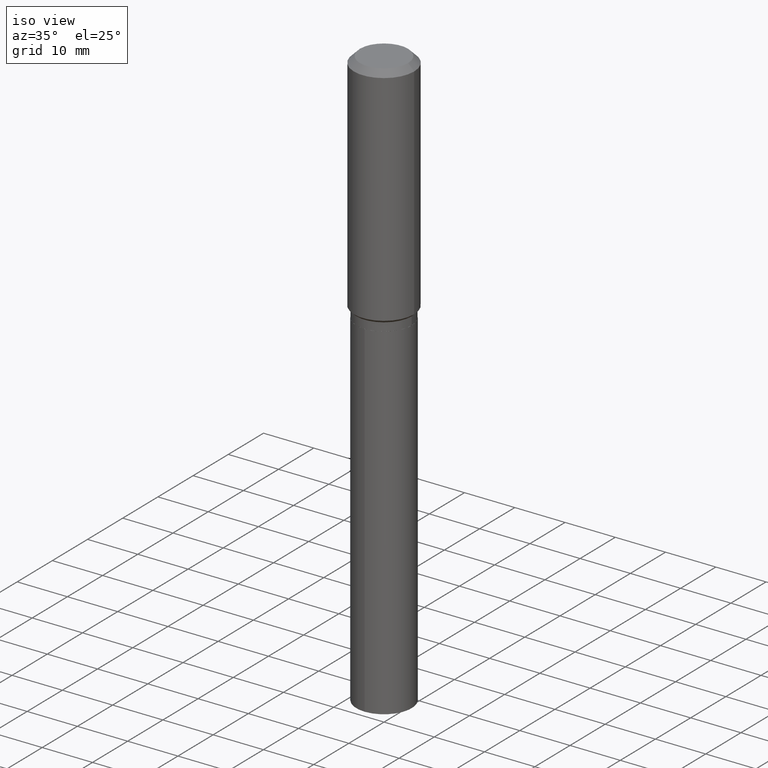
[diagram: clean part render]
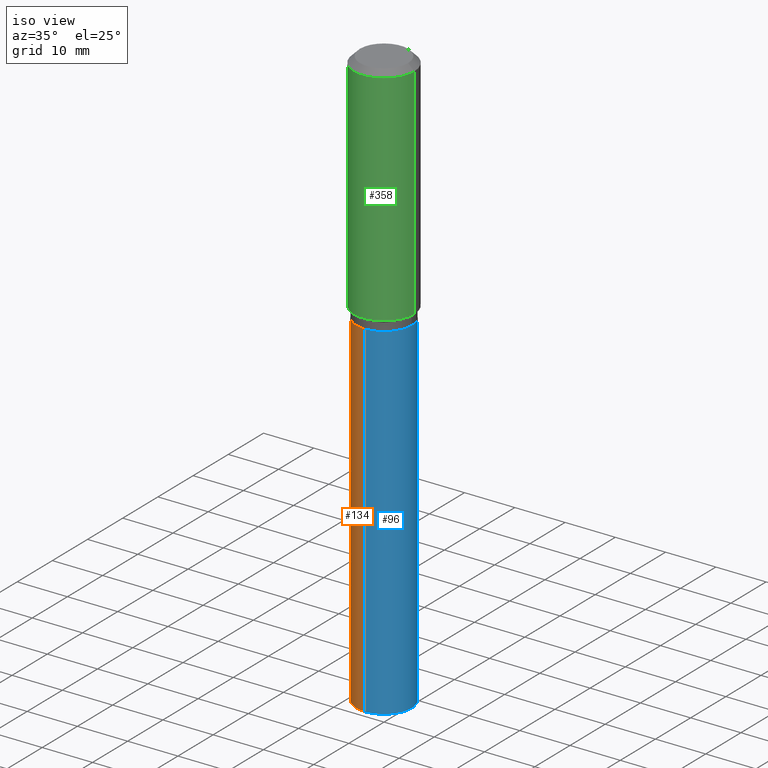
[diagram: same view with three faces highlighted in distinct colors, each labeled with its STEP entity id]
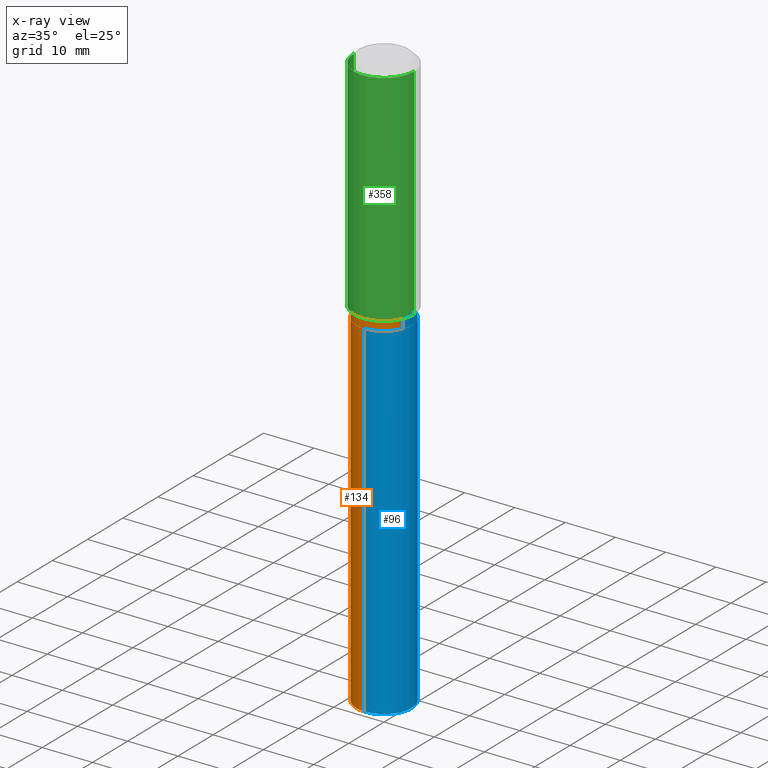
[diagram: x-ray of the same camera — body ghosted, the three highlighted faces saturated]
A machine part, iso view with three faces highlighted in distinct colors.
The next image is the same camera in x-ray (body ghosted, the three faces saturated) — at least one of them is partly hidden behind the body in this view.
Their STEP definitions:

[orange] entity #134 — the highlighted cylindrical surface (edge-blend (fillet) strip) has radius 5.5004 mm, axis along (-0, 0, 1).
#10 = DIRECTION ( 'NONE',  ( -2.445448598755098634E-29, 3.491510277033095475E-15, 1.000000000000000000 ) ) ;
#28 = AXIS2_PLACEMENT_3D ( 'NONE', #472, #223, #302 ) ;
#33 = CIRCLE ( 'NONE', #473, 0.2165500000000000203 ) ;
#42 = DIRECTION ( 'NONE',  ( -2.445448598755098634E-29, 3.491510277033095475E-15, 1.000000000000000000 ) ) ;
#63 = VECTOR ( 'NONE', #10, 39.37007874015748143 ) ;
#70 = CARTESIAN_POINT ( 'NONE',  ( 1.538680294288608129E-15, 0.2165499999999840330, -4.560698686505585187 ) ) ;
#74 = ORIENTED_EDGE ( 'NONE', *, *, #113, .F. ) ;
#109 = FACE_OUTER_BOUND ( 'NONE', #233, .T. ) ;
#113 = EDGE_CURVE ( 'NONE', #367, #129, #33, .T. ) ;
#114 = CARTESIAN_POINT ( 'NONE',  ( 4.525829119606832626E-29, -6.461684513797009689E-15, -1.850700000000000012 ) ) ;
#129 = VERTEX_POINT ( 'NONE', #336 ) ;
#131 = ORIENTED_EDGE ( 'NONE', *, *, #486, .T. ) ;
#134 = ADVANCED_FACE ( 'NONE', ( #109 ), #343, .T. ) ;
#141 = EDGE_CURVE ( 'NONE', #238, #367, #224, .T. ) ;
#157 = VECTOR ( 'NONE', #487, 39.37007874015748143 ) ;
#158 = LINE ( 'NONE', #313, #63 ) ;
#180 = VERTEX_POINT ( 'NONE', #187 ) ;
#187 = CARTESIAN_POINT ( 'NONE',  ( -1.512160567852848804E-15, -0.2165500000000158409, -4.560698686505584298 ) ) ;
#196 = CIRCLE ( 'NONE', #28, 0.2165500000000000203 ) ;
#223 = DIRECTION ( 'NONE',  ( -2.445448598755098634E-29, 3.491510277033095475E-15, 1.000000000000000000 ) ) ;
#224 = LINE ( 'NONE', #337, #157 ) ;
#227 = DIRECTION ( 'NONE',  ( -6.982962677686265133E-15, -1.000000000000000000, 3.784596620176766988E-15 ) ) ;
#233 = EDGE_LOOP ( 'NONE', ( #268, #131, #461, #74 ) ) ;
#238 = VERTEX_POINT ( 'NONE', #70 ) ;
#250 = AXIS2_PLACEMENT_3D ( 'NONE', #258, #42, #378 ) ;
#258 = CARTESIAN_POINT ( 'NONE',  ( 4.525829119606832626E-29, -6.461684513797009689E-15, -1.850700000000000012 ) ) ;
#263 = DIRECTION ( 'NONE',  ( -2.445448598755098634E-29, 3.491510277033095475E-15, 1.000000000000000000 ) ) ;
#268 = ORIENTED_EDGE ( 'NONE', *, *, #141, .F. ) ;
#302 = DIRECTION ( 'NONE',  ( -6.982962677686265133E-15, -1.000000000000000000, 2.523064413451178124E-15 ) ) ;
#313 = CARTESIAN_POINT ( 'NONE',  ( -1.512160567852915463E-15, -0.2165500000000064595, -1.850699999999999124 ) ) ;
#336 = CARTESIAN_POINT ( 'NONE',  ( -1.512160567852915463E-15, -0.2165500000000064595, -1.850699999999999124 ) ) ;
#337 = CARTESIAN_POINT ( 'NONE',  ( 1.538680294288542061E-15, 0.2165499999999935532, -1.850700000000000900 ) ) ;
#343 = CYLINDRICAL_SURFACE ( 'NONE', #250, 0.2165500000000000203 ) ;
#367 = VERTEX_POINT ( 'NONE', #399 ) ;
#378 = DIRECTION ( 'NONE',  ( -6.982962677686265133E-15, -1.000000000000000000, 3.784596620176766988E-15 ) ) ;
#399 = CARTESIAN_POINT ( 'NONE',  ( 1.538680294288608917E-15, 0.2165499999999935532, -1.850700000000000900 ) ) ;
#457 = EDGE_CURVE ( 'NONE', #180, #129, #158, .T. ) ;
#461 = ORIENTED_EDGE ( 'NONE', *, *, #457, .T. ) ;
#472 = CARTESIAN_POINT ( 'NONE',  ( 1.115299161015007237E-28, -1.592367277847744930E-14, -4.560698686505585187 ) ) ;
#473 = AXIS2_PLACEMENT_3D ( 'NONE', #114, #263, #227 ) ;
#486 = EDGE_CURVE ( 'NONE', #238, #180, #196, .T. ) ;
#487 = DIRECTION ( 'NONE',  ( -2.445448598755098634E-29, 3.491510277033095475E-15, 1.000000000000000000 ) ) ;

[blue] entity #96 — the highlighted cylindrical surface (edge-blend (fillet) strip) has radius 5.5004 mm, axis along (-0, 0, 1).
#10 = DIRECTION ( 'NONE',  ( -2.445448598755098634E-29, 3.491510277033095475E-15, 1.000000000000000000 ) ) ;
#11 = AXIS2_PLACEMENT_3D ( 'NONE', #106, #255, #415 ) ;
#23 = AXIS2_PLACEMENT_3D ( 'NONE', #189, #340, #421 ) ;
#52 = ORIENTED_EDGE ( 'NONE', *, *, #457, .F. ) ;
#62 = EDGE_CURVE ( 'NONE', #180, #238, #280, .T. ) ;
#63 = VECTOR ( 'NONE', #10, 39.37007874015748143 ) ;
#70 = CARTESIAN_POINT ( 'NONE',  ( 1.538680294288608129E-15, 0.2165499999999840330, -4.560698686505585187 ) ) ;
#78 = FACE_OUTER_BOUND ( 'NONE', #166, .T. ) ;
#82 = AXIS2_PLACEMENT_3D ( 'NONE', #297, #474, #135 ) ;
#84 = EDGE_CURVE ( 'NONE', #129, #367, #115, .T. ) ;
#91 = ORIENTED_EDGE ( 'NONE', *, *, #84, .F. ) ;
#96 = ADVANCED_FACE ( 'NONE', ( #78 ), #183, .T. ) ;
#106 = CARTESIAN_POINT ( 'NONE',  ( 4.525829119606832626E-29, -6.461684513797009689E-15, -1.850700000000000012 ) ) ;
#115 = CIRCLE ( 'NONE', #11, 0.2165500000000000203 ) ;
#129 = VERTEX_POINT ( 'NONE', #336 ) ;
#135 = DIRECTION ( 'NONE',  ( -6.982962677686265133E-15, -1.000000000000000000, 2.523064413451178124E-15 ) ) ;
#141 = EDGE_CURVE ( 'NONE', #238, #367, #224, .T. ) ;
#157 = VECTOR ( 'NONE', #487, 39.37007874015748143 ) ;
#158 = LINE ( 'NONE', #313, #63 ) ;
#166 = EDGE_LOOP ( 'NONE', ( #464, #398, #91, #52 ) ) ;
#180 = VERTEX_POINT ( 'NONE', #187 ) ;
#183 = CYLINDRICAL_SURFACE ( 'NONE', #23, 0.2165500000000000203 ) ;
#187 = CARTESIAN_POINT ( 'NONE',  ( -1.512160567852848804E-15, -0.2165500000000158409, -4.560698686505584298 ) ) ;
#189 = CARTESIAN_POINT ( 'NONE',  ( 4.525829119606832626E-29, -6.461684513797009689E-15, -1.850700000000000012 ) ) ;
#224 = LINE ( 'NONE', #337, #157 ) ;
#238 = VERTEX_POINT ( 'NONE', #70 ) ;
#255 = DIRECTION ( 'NONE',  ( -2.445448598755098634E-29, 3.491510277033095475E-15, 1.000000000000000000 ) ) ;
#280 = CIRCLE ( 'NONE', #82, 0.2165500000000000203 ) ;
#297 = CARTESIAN_POINT ( 'NONE',  ( 1.115299161015007237E-28, -1.592367277847744930E-14, -4.560698686505585187 ) ) ;
#313 = CARTESIAN_POINT ( 'NONE',  ( -1.512160567852915463E-15, -0.2165500000000064595, -1.850699999999999124 ) ) ;
#336 = CARTESIAN_POINT ( 'NONE',  ( -1.512160567852915463E-15, -0.2165500000000064595, -1.850699999999999124 ) ) ;
#337 = CARTESIAN_POINT ( 'NONE',  ( 1.538680294288542061E-15, 0.2165499999999935532, -1.850700000000000900 ) ) ;
#340 = DIRECTION ( 'NONE',  ( -2.445448598755098634E-29, 3.491510277033095475E-15, 1.000000000000000000 ) ) ;
#367 = VERTEX_POINT ( 'NONE', #399 ) ;
#398 = ORIENTED_EDGE ( 'NONE', *, *, #141, .T. ) ;
#399 = CARTESIAN_POINT ( 'NONE',  ( 1.538680294288608917E-15, 0.2165499999999935532, -1.850700000000000900 ) ) ;
#415 = DIRECTION ( 'NONE',  ( -6.982962677686265133E-15, -1.000000000000000000, 3.784596620176766988E-15 ) ) ;
#421 = DIRECTION ( 'NONE',  ( -6.982962677686265133E-15, -1.000000000000000000, 3.784596620176766988E-15 ) ) ;
#457 = EDGE_CURVE ( 'NONE', #180, #129, #158, .T. ) ;
#464 = ORIENTED_EDGE ( 'NONE', *, *, #62, .T. ) ;
#474 = DIRECTION ( 'NONE',  ( -2.445448598755098634E-29, 3.491510277033095475E-15, 1.000000000000000000 ) ) ;
#487 = DIRECTION ( 'NONE',  ( -2.445448598755098634E-29, 3.491510277033095475E-15, 1.000000000000000000 ) ) ;

[green] entity #358 — the highlighted cylindrical surface (partial cylindrical patch) has radius 5.9995 mm, axis along (-0, 0, 1).
#15 = DIRECTION ( 'NONE',  ( 1.000000000000000000, -6.982962677686266711E-15, 0.000000000000000000 ) ) ;
#20 = DIRECTION ( 'NONE',  ( -2.445468806185136597E-29, 3.491481338843145583E-15, 1.000000000000000000 ) ) ;
#60 = EDGE_LOOP ( 'NONE', ( #122, #413, #272, #94 ) ) ;
#75 = EDGE_CURVE ( 'NONE', #356, #432, #447, .T. ) ;
#80 = AXIS2_PLACEMENT_3D ( 'NONE', #460, #321, #15 ) ;
#94 = ORIENTED_EDGE ( 'NONE', *, *, #371, .F. ) ;
#105 = DIRECTION ( 'NONE',  ( -2.445468806185136877E-29, 3.491481338843145188E-15, 1.000000000000000000 ) ) ;
#116 = CARTESIAN_POINT ( 'NONE',  ( 0.2362000000000001043, -1.649375784469496920E-15, 1.151752954443000508E-29 ) ) ;
#122 = ORIENTED_EDGE ( 'NONE', *, *, #75, .F. ) ;
#126 = VECTOR ( 'NONE', #418, 39.37007874015748143 ) ;
#140 = CIRCLE ( 'NONE', #80, 0.2361999999999999933 ) ;
#146 = CARTESIAN_POINT ( 'NONE',  ( 4.318820185163259676E-29, -6.166130618463936908E-15, -1.766049999999999898 ) ) ;
#160 = CYLINDRICAL_SURFACE ( 'NONE', #360, 0.2362000000000001043 ) ;
#163 = EDGE_CURVE ( 'NONE', #218, #389, #380, .T. ) ;
#168 = VECTOR ( 'NONE', #105, 39.37007874015748143 ) ;
#193 = EDGE_CURVE ( 'NONE', #356, #218, #262, .T. ) ;
#218 = VERTEX_POINT ( 'NONE', #441 ) ;
#226 = DIRECTION ( 'NONE',  ( 1.000000000000000000, -6.982962677686266711E-15, 0.000000000000000000 ) ) ;
#235 = CARTESIAN_POINT ( 'NONE',  ( -0.2362000000000002153, -4.487828676598578936E-15, -1.766049999999999898 ) ) ;
#262 = CIRCLE ( 'NONE', #391, 0.2362000000000002153 ) ;
#269 = CARTESIAN_POINT ( 'NONE',  ( 0.000000000000000000, 0.000000000000000000, 0.000000000000000000 ) ) ;
#272 = ORIENTED_EDGE ( 'NONE', *, *, #163, .T. ) ;
#321 = DIRECTION ( 'NONE',  ( -2.445468806185136597E-29, 3.491481338843145583E-15, 1.000000000000000000 ) ) ;
#324 = CARTESIAN_POINT ( 'NONE',  ( 0.2361999999999999933, -1.814313362916447440E-15, -0.04724000000000028177 ) ) ;
#353 = CARTESIAN_POINT ( 'NONE',  ( -0.2361999999999999933, -1.487232156590086334E-15, -0.04724000000000028177 ) ) ;
#356 = VERTEX_POINT ( 'NONE', #235 ) ;
#358 = ADVANCED_FACE ( 'NONE', ( #394 ), #160, .T. ) ;
#360 = AXIS2_PLACEMENT_3D ( 'NONE', #269, #20, #361 ) ;
#361 = DIRECTION ( 'NONE',  ( 1.000000000000000000, -6.982962677686266711E-15, 4.876176775795935793E-29 ) ) ;
#371 = EDGE_CURVE ( 'NONE', #432, #389, #140, .T. ) ;
#380 = LINE ( 'NONE', #116, #126 ) ;
#389 = VERTEX_POINT ( 'NONE', #324 ) ;
#391 = AXIS2_PLACEMENT_3D ( 'NONE', #146, #454, #226 ) ;
#394 = FACE_OUTER_BOUND ( 'NONE', #60, .T. ) ;
#413 = ORIENTED_EDGE ( 'NONE', *, *, #193, .T. ) ;
#418 = DIRECTION ( 'NONE',  ( -2.445468806185136877E-29, 3.491481338843145188E-15, 1.000000000000000000 ) ) ;
#432 = VERTEX_POINT ( 'NONE', #353 ) ;
#441 = CARTESIAN_POINT ( 'NONE',  ( 0.2362000000000002153, -7.815506402933435799E-15, -1.766049999999999898 ) ) ;
#442 = CARTESIAN_POINT ( 'NONE',  ( -0.2362000000000001043, 1.678301941865357380E-15, -1.161852468318209317E-29 ) ) ;
#447 = LINE ( 'NONE', #442, #168 ) ;
#454 = DIRECTION ( 'NONE',  ( -2.445468806185136597E-29, 3.491481338843145583E-15, 1.000000000000000000 ) ) ;
#460 = CARTESIAN_POINT ( 'NONE',  ( 1.155239464041865506E-30, -1.649375784469511859E-16, -0.04724000000000028177 ) ) ;